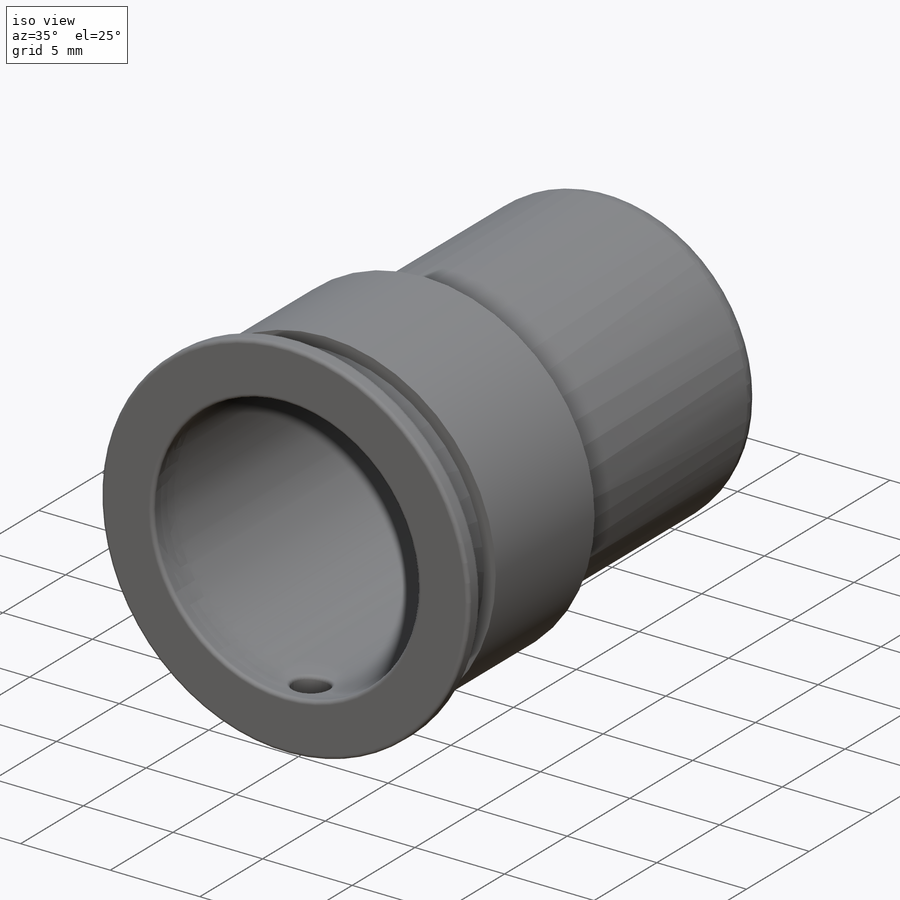
[diagram: iso view]
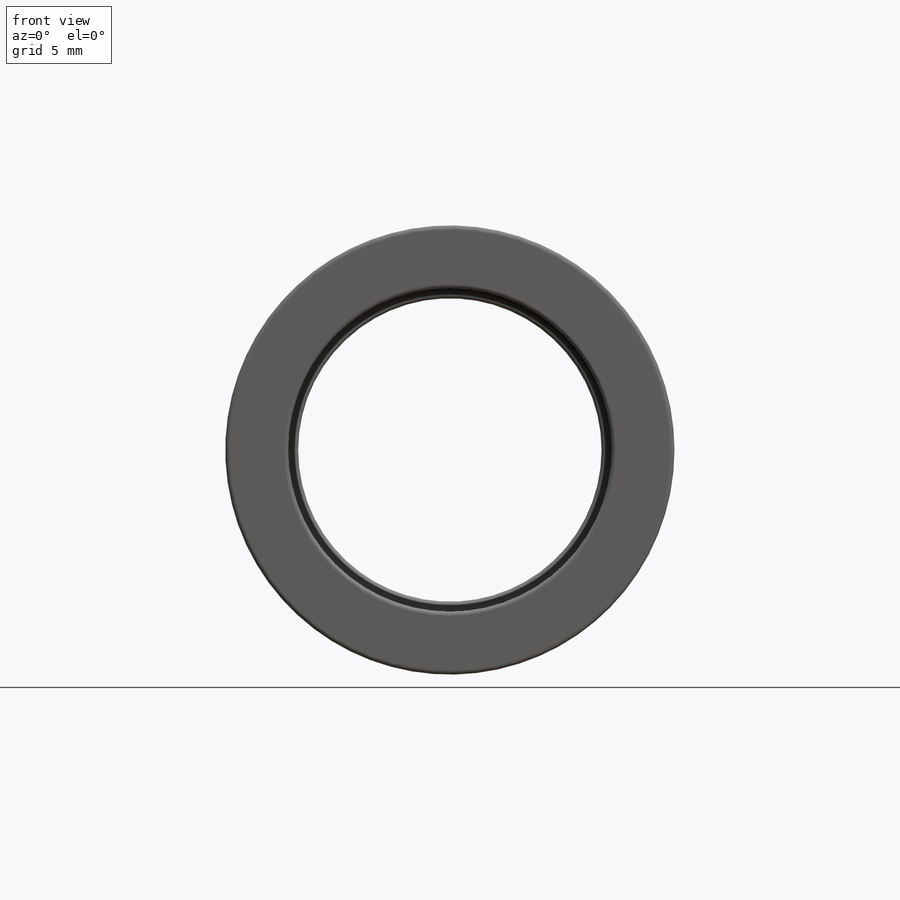
[diagram: front view]
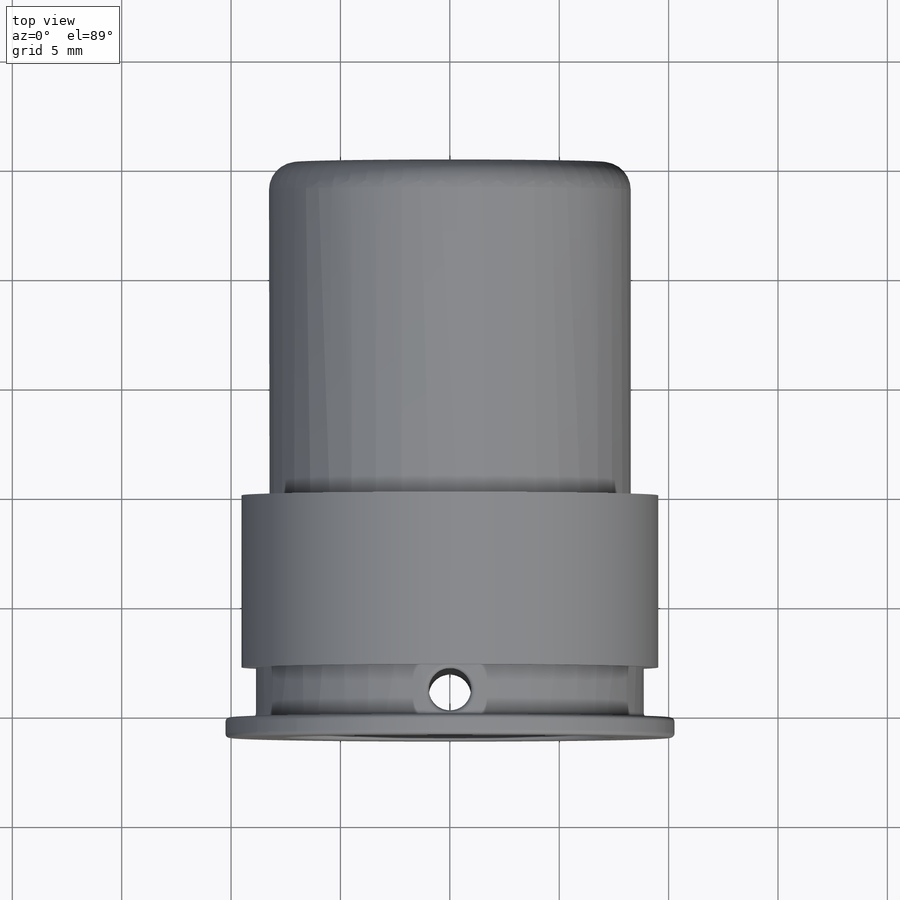
[diagram: top view]
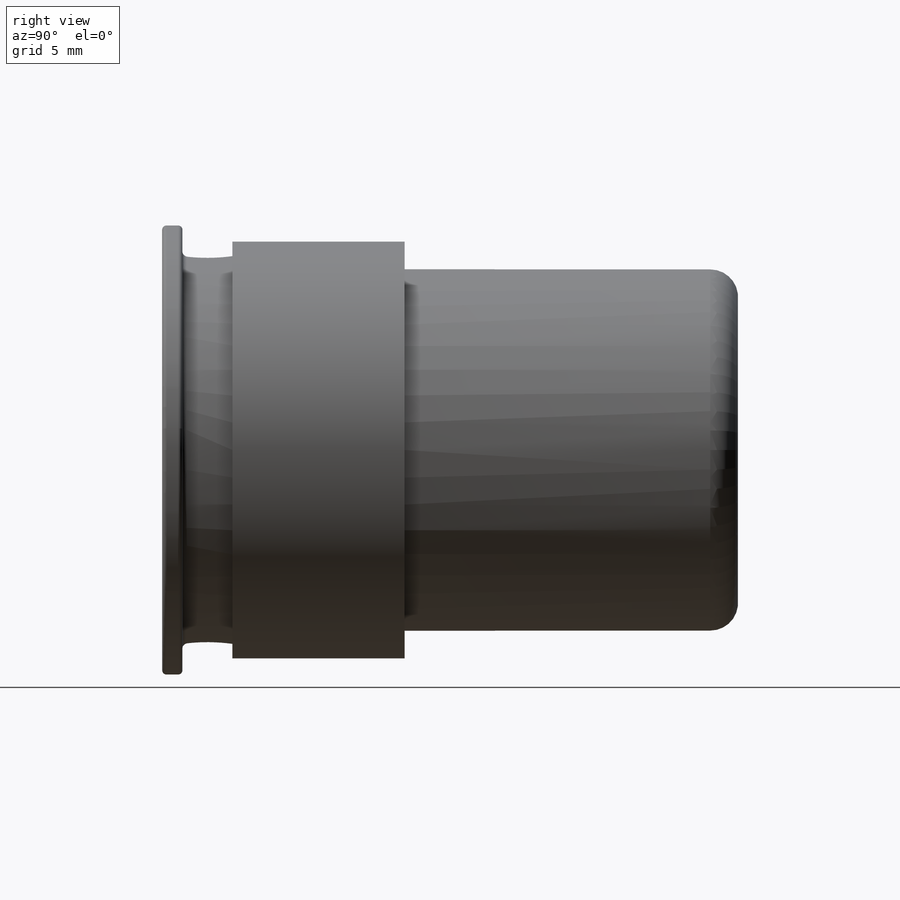
[diagram: right view]
SOLIDWORKS PART (.sldprt)
format: sldprt  version: not decoded by parser v0  size: 459,776 bytes
history: native  units: mm
features: sketch x10, cut_extrude x5, fillet x5, extrude x3, material x1, thread x1, cut_revolve x1 (+16 scaffold rows collapsed)
feature tree (42):
  scaffold x16  (default folders/planes/origin — collapsed)
  material  "Material <not specified>"
  sketch  "Sketch1"  dims[D1=19.05mm]
  extrude  "Extrude1"  [1 undecoded]
  thread  "Cosmetic Thread1"  Diameter=17.7292mm  [1 undecoded]
  sketch  "Sketch2"  dims[D1=20.5359mm]
  extrude  "Extrude2"  Depth=0.9271mm
  sketch  "Sketch3"  dims[D1=17.7292mm]
  cut_extrude  "Extrude3"  Depth=2.286mm
  sketch  "Sketch4"  dims[D1=16.5354mm]
  extrude  "Extrude4"  Depth=25.4mm
  sketch  "Sketch5"  dims[D1=13.8684mm]
  fillet  "Fillet1"  Radius=1.27mm
  sketch  "Sketch6"  dims[D1=14.605mm]
  cut_extrude  "Extrude7"  [1 undecoded]
  sketch  "Sketch7"  dims[D1=1.9304mm]
  cut_extrude  "Extrude8"  [1 undecoded]
  sketch  "Sketch9"  dims[D1=15.24mm]
  sketch  "Sketch10"
  cut_revolve  "Cut-Revolve6"  Angle=360deg
  sketch  "Sketch12"  dims[D1=15.24mm]
  cut_extrude  "Extrude10"  [1 undecoded]
  cut_extrude  "Extrude11"  [1 undecoded]
  fillet  "Fillet4"  Radius=0.635mm
  fillet  "Fillet5"  Radius=0.198437mm
  fillet  "Fillet6"  Radius=0.198437mm
  fillet  "Fillet7"  Radius=0.198437mm
decode coverage: 19 of 25 modeling features carry decoded parameters
note: 6 parameter values undecoded
summary: no parameter record found for 5 features
note: suppression state not decoded; provenance and decode notes live in map.json
